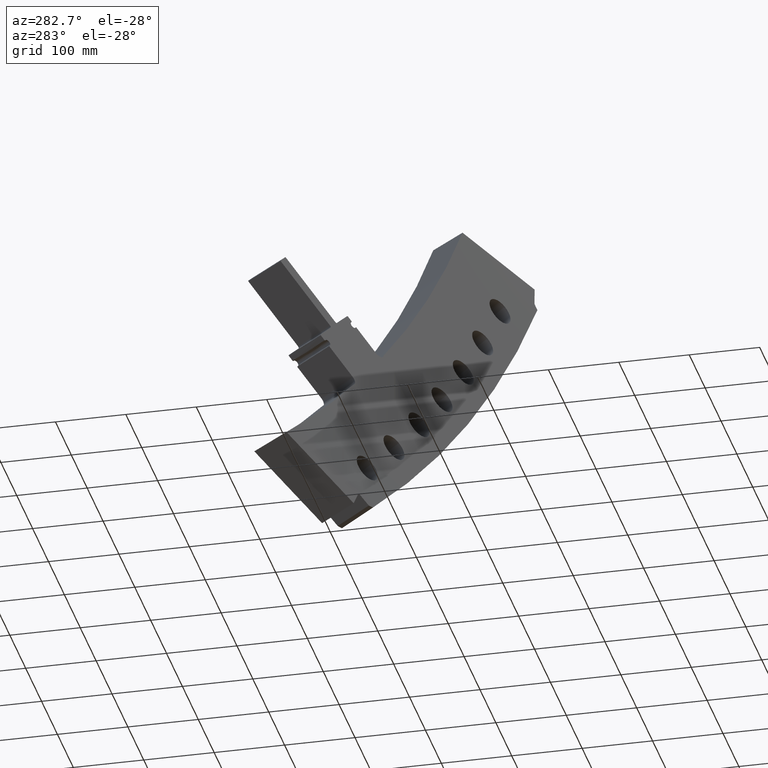
[diagram: clean part render]
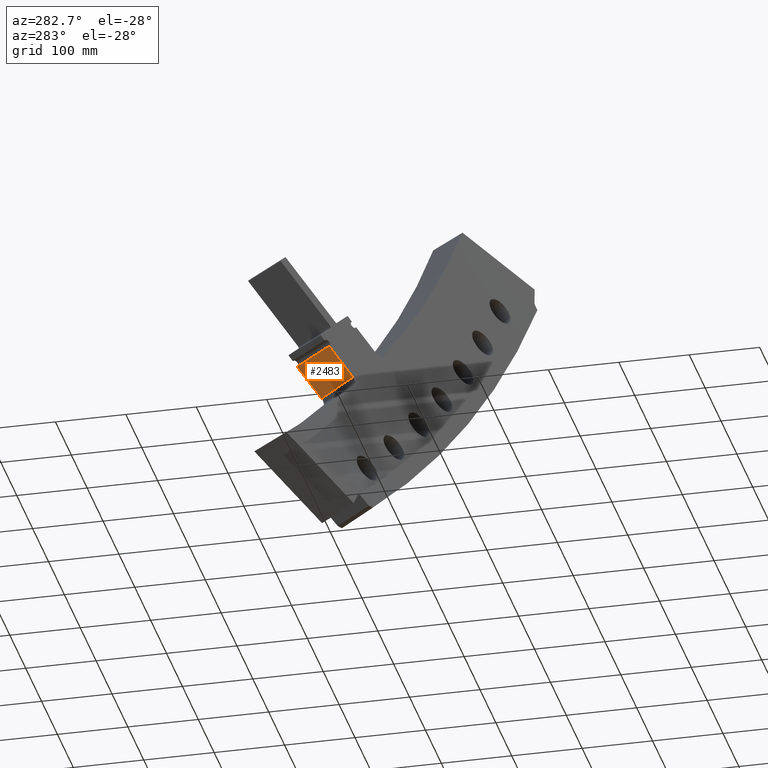
[diagram: same view with one face highlighted and labeled with its STEP entity id]
A machine part, auxiliary view. The second image highlights one B-rep face of the part: STEP entity #2483.
In plain terms, the highlighted face is a freeform B-spline surface patch.
Its self-contained STEP definition (entity closure, byte-faithful):
#71=CARTESIAN_POINT('',(7.426396497243E1,-2.018117767834E1,-4.850001747068E1));
#81=CARTESIAN_POINT('',(7.322662826487E1,-1.909071871240E1,-4.700172978686E1));
#82=CARTESIAN_POINT('',(7.333998205052E1,-1.920985426338E1,-4.716538363735E1));
#83=CARTESIAN_POINT('',(7.356795975812E1,-1.944947628392E1,-4.749457342839E1));
#84=CARTESIAN_POINT('',(7.391373803520E1,-1.981296243644E1,-4.799400322754E1));
#85=CARTESIAN_POINT('',(7.414679886133E1,-2.005798884215E1,-4.833071906968E1));
#86=CARTESIAN_POINT('',(7.426396497243E1,-2.018117767834E1,-4.850001747068E1));
#381=CARTESIAN_POINT('',(7.495636554320E1,-1.827766555190E1,-4.924911266791E1));
#589=CARTESIAN_POINT('',(7.495636554320E1,-1.827766555190E1,-4.924911266791E1));
#590=CARTESIAN_POINT('',(7.483502461011E1,-1.814978996668E1,-4.907288345994E1));
#591=CARTESIAN_POINT('',(7.459422001764E1,-1.789601360721E1,-4.872314073841E1));
#592=CARTESIAN_POINT('',(7.423864809596E1,-1.752127439789E1,-4.820667100076E1));
#593=CARTESIAN_POINT('',(7.400535896816E1,-1.727539904211E1,-4.786778534144E1));
#594=CARTESIAN_POINT('',(7.388965470964E1,-1.715344923088E1,-4.769969886254E1));
#831=CARTESIAN_POINT('',(7.388965470964E1,-1.715344923088E1,-4.769969886254E1));
#832=CARTESIAN_POINT('',(7.375014454776E1,-1.753943059985E1,-4.758386213200E1));
#833=CARTESIAN_POINT('',(7.352267105145E1,-1.819160772025E1,-4.736410958375E1));
#834=CARTESIAN_POINT('',(7.331143252729E1,-1.882911190747E1,-4.711169544500E1));
#835=CARTESIAN_POINT('',(7.322662826487E1,-1.909071871240E1,-4.700172978686E1));
#837=CARTESIAN_POINT('',(7.495636554320E1,-1.827766555190E1,-4.924911266791E1));
#838=CARTESIAN_POINT('',(7.483368158198E1,-1.860538828254E1,-4.914178322639E1));
#839=CARTESIAN_POINT('',(7.459648708601E1,-1.924878973580E1,-4.890849995717E1));
#840=CARTESIAN_POINT('',(7.437213995044E1,-1.987444133832E1,-4.864082172582E1));
#841=CARTESIAN_POINT('',(7.426396497243E1,-2.018117767834E1,-4.850001747068E1));
#935=VERTEX_POINT('',#71);
#937=VERTEX_POINT('',#81);
#962=VERTEX_POINT('',#381);
#963=VERTEX_POINT('',#594);
#2456=CARTESIAN_POINT('',(7.508659622640E1,-1.804196062311E1,
-4.937746148799E1));
#2457=CARTESIAN_POINT('',(7.468004087493E1,-1.772868464411E1,
-4.880570890480E1));
#2458=CARTESIAN_POINT('',(7.427348552345E1,-1.741540866511E1,
-4.823395632161E1));
#2459=CARTESIAN_POINT('',(7.386693017198E1,-1.710213268611E1,
-4.766220373842E1));
#2460=CARTESIAN_POINT('',(7.492889763144E1,-1.845940492849E1,
-4.924833733480E1));
#2461=CARTESIAN_POINT('',(7.452737998320E1,-1.813843399715E1,
-4.868043596841E1));
#2462=CARTESIAN_POINT('',(7.412586233495E1,-1.781746306580E1,
-4.811253460203E1));
#2463=CARTESIAN_POINT('',(7.372434468670E1,-1.749649213445E1,
-4.754463323565E1));
#2464=CARTESIAN_POINT('',(7.465385259322E1,-1.920173599104E1,
-4.898506922772E1));
#2465=CARTESIAN_POINT('',(7.426222634468E1,-1.886807920507E1,
-4.842612697947E1));
#2466=CARTESIAN_POINT('',(7.387060009614E1,-1.853442241910E1,
-4.786718473122E1));
#2467=CARTESIAN_POINT('',(7.347897384760E1,-1.820076563313E1,
-4.730824248297E1));
#2468=CARTESIAN_POINT('',(7.439568467954E1,-1.992050312383E1,
-4.867627753821E1));
#2469=CARTESIAN_POINT('',(7.401466816273E1,-1.957635680304E1,
-4.812881083941E1));
#2470=CARTESIAN_POINT('',(7.363365164592E1,-1.923221048226E1,
-4.758134414060E1));
#2471=CARTESIAN_POINT('',(7.325263512911E1,-1.888806416147E1,
-4.703387744180E1));
#2472=CARTESIAN_POINT('',(7.428407051988E1,-2.023658223097E1,
-4.853030641968E1));
#2473=CARTESIAN_POINT('',(7.390782974123E1,-1.988813024620E1,
-4.798830047296E1));
#2474=CARTESIAN_POINT('',(7.353158896258E1,-1.953967826143E1,
-4.744629452624E1));
#2475=CARTESIAN_POINT('',(7.315534818393E1,-1.919122627666E1,
-4.690428857953E1));
#2476=B_SPLINE_SURFACE_WITH_KNOTS('',3,3,((#2456,#2457,#2458,#2459),(#2460,
#2461,#2462,#2463),(#2464,#2465,#2466,#2467),(#2468,#2469,#2470,#2471),(#2472,
#2473,#2474,#2475)),.UNSPECIFIED.,.F.,.F.,.F.,(4,1,4),(4,4),(4.280160620978E-1,
5.212996199750E-1,5.962895208068E-1),(-2.795246756387E-2,1.027952401841E0),
.UNSPECIFIED.);
#2477=ORIENTED_EDGE('',*,*,#994,.T.);
#2478=ORIENTED_EDGE('',*,*,#1439,.F.);
#2479=ORIENTED_EDGE('',*,*,#1208,.T.);
#2480=ORIENTED_EDGE('',*,*,#2449,.T.);
#2481=EDGE_LOOP('',(#2477,#2478,#2479,#2480));
#2482=FACE_OUTER_BOUND('',#2481,.F.);
#2483=ADVANCED_FACE('',(#2482),#2476,.T.);
#87=B_SPLINE_CURVE_WITH_KNOTS('',3,(#81,#82,#83,#84,#85,#86),.UNSPECIFIED.,.F.,
.F.,(4,1,1,4),(0.E0,3.333333333333E-1,6.666666666667E-1,1.E0),.UNSPECIFIED.);
#595=B_SPLINE_CURVE_WITH_KNOTS('',3,(#589,#590,#591,#592,#593,#594),
.UNSPECIFIED.,.F.,.F.,(4,1,1,4),(0.E0,3.333333333333E-1,6.666666666667E-1,1.E0),
.UNSPECIFIED.);
#836=B_SPLINE_CURVE_WITH_KNOTS('',3,(#831,#832,#833,#834,#835),.UNSPECIFIED.,
.F.,.F.,(4,1,4),(0.E0,5.859408253087E-1,1.E0),.UNSPECIFIED.);
#842=B_SPLINE_CURVE_WITH_KNOTS('',3,(#837,#838,#839,#840,#841),.UNSPECIFIED.,
.F.,.F.,(4,1,4),(0.E0,5.033804653994E-1,1.E0),.UNSPECIFIED.);
#994=EDGE_CURVE('',#937,#935,#87,.T.);
#1208=EDGE_CURVE('',#962,#963,#595,.T.);
#1439=EDGE_CURVE('',#962,#935,#842,.T.);
#2449=EDGE_CURVE('',#963,#937,#836,.T.);